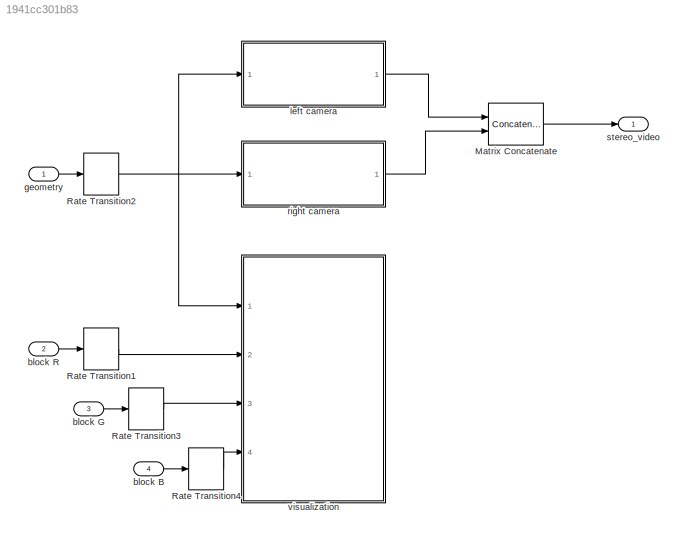
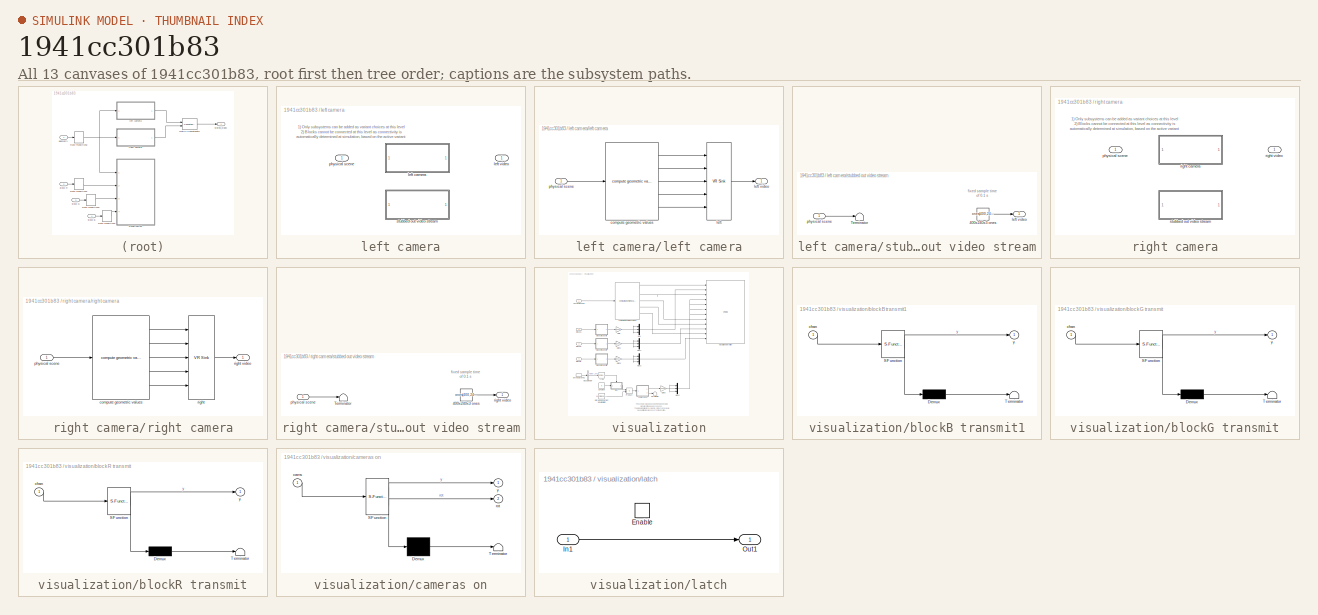
[diagram: thumbnail index - all 13 canvases of the model, root first then tree order]
MODEL slx_1941cc301b83
KIND model
WORKSPACE source: MAT-file member
WORKSPACE ini_nozzle_vpos = 0.3
BLOCK [Concatenate] Matrix Concatenate
  ConcatenateDimension = 3
  Mode = Multidimensional array
  Ports = [2, 1]
BLOCK [RateTransition] Rate Transition1
  Deterministic = off
  OutPortSampleTime = 0.1
BLOCK [RateTransition] Rate Transition2
  Deterministic = off
  OutPortSampleTime = 0.1
BLOCK [RateTransition] Rate Transition3
  Deterministic = off
  OutPortSampleTime = 0.1
BLOCK [RateTransition] Rate Transition4
  Deterministic = off
  OutPortSampleTime = 0.1
BLOCK [Inport] block B
  BusOutputAsStruct = on
  IconDisplay = Port number
  OutDataTypeStr = Bus: slBusBlockOps
  Port = 4
  SampleTime = 0.05
BLOCK [Inport] block G
  BusOutputAsStruct = on
  IconDisplay = Port number
  OutDataTypeStr = Bus: slBusBlockOps
  Port = 3
  SampleTime = 0.05
BLOCK [Inport] block R
  BusOutputAsStruct = on
  IconDisplay = Port number
  OutDataTypeStr = Bus: slBusBlockOps
  Port = 2
  SampleTime = 0.05
BLOCK [Inport] geometry
  IconDisplay = Port number
  OutDataTypeStr = Bus: slBusGeometry
  SampleTime = 0.005
BLOCK [SubSystem] left camera
  FunctionWithSeparateData = off
  MaskHideContents = off
  MinAlgLoopOccurrences = off
  Opaque = off
  Ports = [1, 1]
  PropExecContextOutsideSubsystem = off
  RTWSystemCode = Auto
  RequestExecContextInheritance = off
  Variant = on
BLOCK [SubSystem] left camera/left camera
  FunctionWithSeparateData = off
  MaskHideContents = off
  MinAlgLoopOccurrences = off
  Opaque = off
  Ports = [1, 1]
  PropExecContextOutsideSubsystem = off
  RTWSystemCode = Auto
  RequestExecContextInheritance = off
  VariantObject = useStereopsisVariant
BLOCK [Reference] left camera/left camera/compute geometric values  REF=cps_lib_v2/compute geometric  (lib defined in slx_b159750f0f55)
values
  Ports = [1, 5]
  SourceBlock = cps_lib_v2/compute geometric\nvalues
  SourceType = SubSystem
BLOCK [Reference] left camera/left camera/left  REF=vrlib/VR Sink
  AllowVariableSize = off
  AutoView = off
  FieldsWritten = red_block2x3dim.translation.3.1.1.double#slider.translation.3.1.1.double#LOWER.translation.3.1.1.double#purple_block2x3dim.translation.3.1.1.double#blue_block2x3dim.translation.3.1.1.double
  FigureProperties = {'Position', 'Name', 'Viewpoint', 'CameraBound', 'CameraDirection', 'CameraPosition', 'CameraUpVector', 'ZoomFactor', 'Antialiasing', 'Headlight', 'Lighting', 'NavPanel', 'StatusBar', 'ToolBar', 'Textures', 'Transparency', 'Triad', 'Wireframe', 'NavZones', 'NavMode', 'NavSpeed', 'CaptureFileFormat', 'CaptureFileName', 'Record2DCompressMethod', 'Record2DCompressQuality', 'Record2D', 'Record2DFileNa...<+591ch>
  InstantiateOnLoad = on
  Ports = [5, 1]
  RemoteChange = off
  RemoteView = off
  SampleTime = 0.1
  SourceBlock = vrlib/VR Sink
  SourceType = Virtual Reality Sink
  VideoDimensions = [400 240]
  ViewEnable = on
  WorldFileName = cps_world_v2.wrl
BLOCK [Outport] left camera/left camera/left video
  IconDisplay = Port number
BLOCK [Inport] left camera/left camera/physical scene
  IconDisplay = Port number
BLOCK [Outport] left camera/left video
  IconDisplay = Port number
BLOCK [Inport] left camera/physical scene
  IconDisplay = Port number
BLOCK [SubSystem] left camera/stubbed out video stream
  FunctionWithSeparateData = off
  MaskHideContents = off
  MinAlgLoopOccurrences = off
  Opaque = off
  Ports = [1, 1]
  PropExecContextOutsideSubsystem = off
  RTWSystemCode = Auto
  RequestExecContextInheritance = off
  VariantObject = noStereopsisVariant
BLOCK [Constant] left camera/stubbed out video stream/400x240x3 ones
  OutDataTypeStr = uint8
  SampleTime = 0.1
  Value = ones(400,240,3)
  VectorParams1D = off
BLOCK [Terminator] left camera/stubbed out video stream/Terminator
BLOCK [Outport] left camera/stubbed out video stream/left video
  IconDisplay = Port number
BLOCK [Inport] left camera/stubbed out video stream/physical scene
  IconDisplay = Port number
BLOCK [SubSystem] right camera
  FunctionWithSeparateData = off
  MaskHideContents = off
  MinAlgLoopOccurrences = off
  Opaque = off
  Ports = [1, 1]
  PropExecContextOutsideSubsystem = off
  RTWSystemCode = Auto
  RequestExecContextInheritance = off
  Variant = on
BLOCK [Inport] right camera/physical scene
  IconDisplay = Port number
BLOCK [SubSystem] right camera/right camera
  FunctionWithSeparateData = off
  MaskHideContents = off
  MinAlgLoopOccurrences = off
  Opaque = off
  Ports = [1, 1]
  PropExecContextOutsideSubsystem = off
  RTWSystemCode = Auto
  RequestExecContextInheritance = off
  VariantObject = useStereopsisVariant
BLOCK [Reference] right camera/right camera/compute geometric values  REF=cps_lib_v2/compute geometric  (lib defined in slx_b159750f0f55)
values
  Ports = [1, 5]
  SourceBlock = cps_lib_v2/compute geometric\nvalues
  SourceType = SubSystem
BLOCK [Inport] right camera/right camera/physical scene
  IconDisplay = Port number
BLOCK [Reference] right camera/right camera/right  REF=vrlib/VR Sink
  AllowVariableSize = off
  AutoView = off
  FieldsWritten = red_block2x3dim.translation.3.1.1.double#slider.translation.3.1.1.double#LOWER.translation.3.1.1.double#purple_block2x3dim.translation.3.1.1.double#blue_block2x3dim.translation.3.1.1.double
  FigureProperties = {'Position', 'Name', 'Viewpoint', 'CameraBound', 'CameraDirection', 'CameraPosition', 'CameraUpVector', 'ZoomFactor', 'Antialiasing', 'Headlight', 'Lighting', 'NavPanel', 'StatusBar', 'ToolBar', 'Textures', 'Transparency', 'Triad', 'Wireframe', 'NavZones', 'NavMode', 'NavSpeed', 'CaptureFileFormat', 'CaptureFileName', 'Record2DCompressMethod', 'Record2DCompressQuality', 'Record2D', 'Record2DFileNa...<+592ch>
  InstantiateOnLoad = on
  Ports = [5, 1]
  RemoteChange = off
  RemoteView = off
  SampleTime = 0.1
  SourceBlock = vrlib/VR Sink
  SourceType = Virtual Reality Sink
  VideoDimensions = [400 240]
  ViewEnable = on
  WorldFileName = cps_world_v2.wrl
BLOCK [Outport] right camera/right camera/right video
  IconDisplay = Port number
BLOCK [Outport] right camera/right video
  IconDisplay = Port number
BLOCK [SubSystem] right camera/stubbed out video stream
  FunctionWithSeparateData = off
  MaskHideContents = off
  MinAlgLoopOccurrences = off
  Opaque = off
  Ports = [1, 1]
  PropExecContextOutsideSubsystem = off
  RTWSystemCode = Auto
  RequestExecContextInheritance = off
  VariantObject = noStereopsisVariant
BLOCK [Constant] right camera/stubbed out video stream/400x240x3 ones
  OutDataTypeStr = uint8
  SampleTime = 0.1
  Value = ones(400,240,3)
  VectorParams1D = off
BLOCK [Terminator] right camera/stubbed out video stream/Terminator
BLOCK [Inport] right camera/stubbed out video stream/physical scene
  IconDisplay = Port number
BLOCK [Outport] right camera/stubbed out video stream/right video
  IconDisplay = Port number
BLOCK [Outport] stereo_video
  IconDisplay = Port number
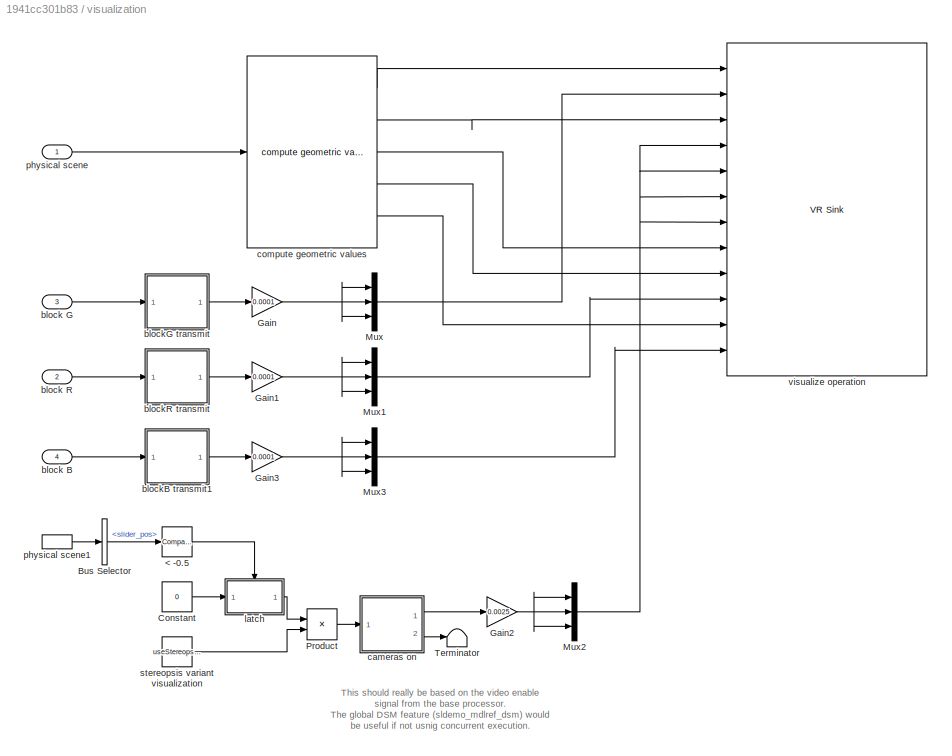
BLOCK [SubSystem] visualization
  FunctionWithSeparateData = off
  MaskHideContents = off
  MinAlgLoopOccurrences = off
  Opaque = off
  Ports = [4]
  PropExecContextOutsideSubsystem = off
  RTWSystemCode = Auto
  RequestExecContextInheritance = off
BLOCK [Reference] visualization/< -0.5  REF=simulink/Logic and Bit
Operations/Compare
To Constant
  OutDataTypeStr = boolean
  Ports = [1, 1]
  SourceBlock = simulink/Logic and Bit\nOperations/Compare\nTo Constant
  SourceType = Compare To Constant
  ZeroCross = on
  const = -0.5
  relop = <
BLOCK [BusSelector] visualization/Bus Selector
  OutputSignals = slider_pos
  Ports = [1, 1]
BLOCK [Constant] visualization/Constant
  OutDataTypeStr = Inherit: Inherit via back propagation
  Value = 0
BLOCK [Gain] visualization/Gain
  Gain = 0.0001
  OutDataTypeStr = Inherit: Inherit via internal rule
  ParamDataTypeStr = Inherit: Inherit via internal rule
  SaturateOnIntegerOverflow = off
BLOCK [Gain] visualization/Gain1
  Gain = 0.0001
  OutDataTypeStr = Inherit: Inherit via internal rule
  ParamDataTypeStr = Inherit: Inherit via internal rule
  SaturateOnIntegerOverflow = off
BLOCK [Gain] visualization/Gain2
  Gain = 0.0025
  OutDataTypeStr = Inherit: Inherit via internal rule
  ParamDataTypeStr = Inherit: Inherit via internal rule
  SaturateOnIntegerOverflow = off
BLOCK [Gain] visualization/Gain3
  Gain = 0.0001
  OutDataTypeStr = Inherit: Inherit via internal rule
  ParamDataTypeStr = Inherit: Inherit via internal rule
  SaturateOnIntegerOverflow = off
BLOCK [Mux] visualization/Mux
  DisplayOption = bar
  Inputs = 3
  Ports = [3, 1]
BLOCK [Mux] visualization/Mux1
  DisplayOption = bar
  Inputs = 3
  Ports = [3, 1]
BLOCK [Mux] visualization/Mux2
  DisplayOption = bar
  Inputs = 3
  Ports = [3, 1]
BLOCK [Mux] visualization/Mux3
  DisplayOption = bar
  Inputs = 3
  Ports = [3, 1]
BLOCK [Product] visualization/Product
  InputSameDT = off
  OutDataTypeStr = uint8
  Ports = [2, 1]
  SaturateOnIntegerOverflow = off
BLOCK [Terminator] visualization/Terminator
BLOCK [Inport] visualization/block B
  BusOutputAsStruct = on
  IconDisplay = Port number
  OutDataTypeStr = Bus: slBusBlockOps
  Port = 4
BLOCK [Inport] visualization/block G
  BusOutputAsStruct = on
  IconDisplay = Port number
  OutDataTypeStr = Bus: slBusBlockOps
  Port = 3
BLOCK [Inport] visualization/block R
  BusOutputAsStruct = on
  IconDisplay = Port number
  OutDataTypeStr = Bus: slBusBlockOps
  Port = 2
BLOCK [SubSystem] visualization/blockB transmit1
  ErrorFcn = Stateflow.Translate.translate
  FunctionWithSeparateData = off
  MaskHideContents = off
  MinAlgLoopOccurrences = off
  Opaque = off
  PermitHierarchicalResolution = ExplicitOnly
  Ports = [1, 1]
  PropExecContextOutsideSubsystem = off
  RTWSystemCode = Auto
  RequestExecContextInheritance = off
  SFBlockType = Chart
  TreatAsAtomicUnit = on
BLOCK [Demux] visualization/blockB transmit1/ Demux 
  Outputs = 1
  Ports = [1, 1]
BLOCK [S-Function] visualization/blockB transmit1/ SFunction 
  EnableBusSupport = on
  FunctionName = sf_sfun
  PortCounts = [1 2]
  Ports = [1, 2]
  Tag = Stateflow S-Function cps_cameras_v2 3
BLOCK [Terminator] visualization/blockB transmit1/ Terminator 
BLOCK [Inport] visualization/blockB transmit1/chan
  IconDisplay = Port number
BLOCK [Outport] visualization/blockB transmit1/y
  IconDisplay = Port number
BLOCK [SubSystem] visualization/blockG transmit
  ErrorFcn = Stateflow.Translate.translate
  FunctionWithSeparateData = off
  MaskHideContents = off
  MinAlgLoopOccurrences = off
  Opaque = off
  PermitHierarchicalResolution = ExplicitOnly
  Ports = [1, 1]
  PropExecContextOutsideSubsystem = off
  RTWSystemCode = Auto
  RequestExecContextInheritance = off
  SFBlockType = Chart
  TreatAsAtomicUnit = on
BLOCK [Demux] visualization/blockG transmit/ Demux 
  Outputs = 1
  Ports = [1, 1]
BLOCK [S-Function] visualization/blockG transmit/ SFunction 
  EnableBusSupport = on
  FunctionName = sf_sfun
  PortCounts = [1 2]
  Ports = [1, 2]
  Tag = Stateflow S-Function cps_cameras_v2 4
BLOCK [Terminator] visualization/blockG transmit/ Terminator 
BLOCK [Inport] visualization/blockG transmit/chan
  IconDisplay = Port number
BLOCK [Outport] visualization/blockG transmit/y
  IconDisplay = Port number
BLOCK [SubSystem] visualization/blockR transmit
  ErrorFcn = Stateflow.Translate.translate
  FunctionWithSeparateData = off
  MaskHideContents = off
  MinAlgLoopOccurrences = off
  Opaque = off
  PermitHierarchicalResolution = ExplicitOnly
  Ports = [1, 1]
  PropExecContextOutsideSubsystem = off
  RTWSystemCode = Auto
  RequestExecContextInheritance = off
  SFBlockType = Chart
  TreatAsAtomicUnit = on
BLOCK [Demux] visualization/blockR transmit/ Demux 
  Outputs = 1
  Ports = [1, 1]
BLOCK [S-Function] visualization/blockR transmit/ SFunction 
  EnableBusSupport = on
  FunctionName = sf_sfun
  PortCounts = [1 2]
  Ports = [1, 2]
  Tag = Stateflow S-Function cps_cameras_v2 1
BLOCK [Terminator] visualization/blockR transmit/ Terminator 
BLOCK [Inport] visualization/blockR transmit/chan
  IconDisplay = Port number
BLOCK [Outport] visualization/blockR transmit/y
  IconDisplay = Port number
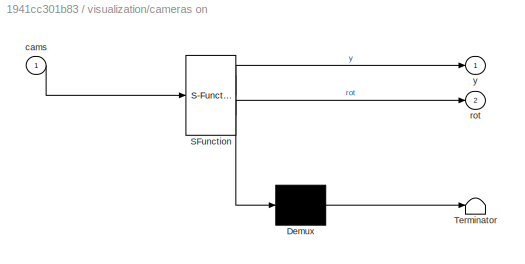
BLOCK [SubSystem] visualization/cameras on
  ErrorFcn = Stateflow.Translate.translate
  FunctionWithSeparateData = off
  MaskHideContents = off
  MinAlgLoopOccurrences = off
  Opaque = off
  PermitHierarchicalResolution = ExplicitOnly
  Ports = [1, 2]
  PropExecContextOutsideSubsystem = off
  RTWSystemCode = Auto
  RequestExecContextInheritance = off
  SFBlockType = Chart
  TreatAsAtomicUnit = on
BLOCK [Demux] visualization/cameras on/ Demux 
  Outputs = 1
  Ports = [1, 1]
BLOCK [S-Function] visualization/cameras on/ SFunction 
  EnableBusSupport = on
  FunctionName = sf_sfun
  PortCounts = [1 3]
  Ports = [1, 3]
  Tag = Stateflow S-Function cps_cameras_v2 2
BLOCK [Terminator] visualization/cameras on/ Terminator 
BLOCK [Inport] visualization/cameras on/cams
  IconDisplay = Port number
BLOCK [Outport] visualization/cameras on/rot
  IconDisplay = Port number
  Port = 2
BLOCK [Outport] visualization/cameras on/y
  IconDisplay = Port number
BLOCK [Reference] visualization/compute geometric values  REF=cps_lib_v2/compute geometric  (lib defined in slx_b159750f0f55)
values
  Ports = [1, 5]
  SourceBlock = cps_lib_v2/compute geometric\nvalues
  SourceType = SubSystem
BLOCK [SubSystem] visualization/latch
  FunctionWithSeparateData = off
  MaskHideContents = off
  MinAlgLoopOccurrences = off
  Opaque = off
  Ports = [1, 1, 1]
  PropExecContextOutsideSubsystem = off
  RTWSystemCode = Auto
  RequestExecContextInheritance = off
  TreatAsAtomicUnit = on
BLOCK [EnablePort] visualization/latch/Enable
  Ports = []
BLOCK [Inport] visualization/latch/In1
  IconDisplay = Port number
BLOCK [Outport] visualization/latch/Out1
  IconDisplay = Port number
  InitialOutput = 1
BLOCK [Inport] visualization/physical scene
  IconDisplay = Port number
BLOCK [InportShadow] visualization/physical scene1
  IconDisplay = Port number
  LatchByDelayingOutsideSignal = off
  LatchInputForFeedbackSignals = off
BLOCK [Constant] visualization/stereopsis variant visualization
  OutDataTypeStr = Inherit: Inherit via back propagation
  Value = useStereopsis
BLOCK [Reference] visualization/visualize operation  REF=vrlib/VR Sink
  AllowVariableSize = off
  AutoView = on
  FieldsWritten = red_block2x3dim.translation.3.1.1.double#blockG_waves.scale.3.1.1.double#slider.translation.3.1.1.double#left_cone_half_one.scale.3.1.1.double#left_cone_half_two.scale.3.1.1.double#right_cone_half_one.scale.3.1.1.double#right_cone_half_two.scale.3.1.1.double#LOWER.translation.3.1.1.double#purple_block2x3dim.translation.3.1.1.double#blockR_waves.scale.3.1.1.double#blue_block2x3dim.translation.3.1.1...<+39ch>
  FigureProperties = {'Position', 'Name', 'Viewpoint', 'CameraBound', 'CameraDirection', 'CameraPosition', 'CameraUpVector', 'ZoomFactor', 'Antialiasing', 'Headlight', 'Lighting', 'NavPanel', 'StatusBar', 'ToolBar', 'Textures', 'Transparency', 'Triad', 'Wireframe', 'NavZones', 'NavMode', 'NavSpeed', 'CaptureFileFormat', 'CaptureFileName', 'Record2DCompressMethod', 'Record2DCompressQuality', 'Record2D', 'Record2DFileNa...<+596ch>
  InstantiateOnLoad = on
  Ports = [12]
  RemoteChange = off
  RemoteView = off
  SampleTime = 0.1
  SourceBlock = vrlib/VR Sink
  SourceType = Virtual Reality Sink
  VideoDimensions = []
  ViewEnable = on
  WorldFileName = cps_world_v2x.wrl
ANNOTATION left camera: 1) Only subsystems can be added as variant choices at this level 2) Blocks cannot be connected at this level as connectivity is automatically determined at simulation, based on the active variant
ANNOTATION left camera/stubbed out video stream: fixed sample time of 0.1 s
ANNOTATION right camera: 1) Only subsystems can be added as variant choices at this level 2) Blocks cannot be connected at this level as connectivity is automatically determined at simulation, based on the active variant
ANNOTATION right camera/stubbed out video stream: fixed sample time of 0.1 s
ANNOTATION visualization: This should really be based on the video enable signal from the base processor. The global DSM feature (sldemo_mdlref_dsm) would be useful if not usnig concurrent execution.
LINE Matrix Concatenate:1 -> stereo_video:1
LINE Rate Transition1:1 -> visualization:2
NET Rate Transition2:1 -> left camera:1, right camera:1, visualization:1
LINE Rate Transition3:1 -> visualization:3
LINE Rate Transition4:1 -> visualization:4
LINE block B:1 -> Rate Transition4:1
LINE block G:1 -> Rate Transition3:1
LINE block R:1 -> Rate Transition1:1
LINE geometry:1 -> Rate Transition2:1
LINE left camera/left camera/compute geometric values:1 -> left camera/left camera/left:1
LINE left camera/left camera/compute geometric values:2 -> left camera/left camera/left:2
LINE left camera/left camera/compute geometric values:3 -> left camera/left camera/left:3
LINE left camera/left camera/compute geometric values:4 -> left camera/left camera/left:4
LINE left camera/left camera/compute geometric values:5 -> left camera/left camera/left:5
LINE left camera/left camera/left:1 -> left camera/left camera/left video:1
LINE left camera/left camera/physical scene:1 -> left camera/left camera/compute geometric values:1
LINE left camera/stubbed out video stream/400x240x3 ones:1 -> left camera/stubbed out video stream/left video:1
LINE left camera/stubbed out video stream/physical scene:1 -> left camera/stubbed out video stream/Terminator:1
LINE left camera:1 -> Matrix Concatenate:1
LINE right camera/right camera/compute geometric values:1 -> right camera/right camera/right:1
LINE right camera/right camera/compute geometric values:2 -> right camera/right camera/right:2
LINE right camera/right camera/compute geometric values:3 -> right camera/right camera/right:3
LINE right camera/right camera/compute geometric values:4 -> right camera/right camera/right:4
LINE right camera/right camera/compute geometric values:5 -> right camera/right camera/right:5
LINE right camera/right camera/physical scene:1 -> right camera/right camera/compute geometric values:1
LINE right camera/right camera/right:1 -> right camera/right camera/right video:1
LINE right camera/stubbed out video stream/400x240x3 ones:1 -> right camera/stubbed out video stream/right video:1
LINE right camera/stubbed out video stream/physical scene:1 -> right camera/stubbed out video stream/Terminator:1
LINE right camera:1 -> Matrix Concatenate:2
LINE visualization/< -0.5:1 -> visualization/latch:enable
LINE visualization/Bus Selector:1 -> visualization/< -0.5:1
LINE visualization/Constant:1 -> visualization/latch:1
NET visualization/Gain1:1 -> visualization/Mux1:1, visualization/Mux1:2, visualization/Mux1:3
NET visualization/Gain2:1 -> visualization/Mux2:1, visualization/Mux2:2, visualization/Mux2:3
NET visualization/Gain3:1 -> visualization/Mux3:1, visualization/Mux3:2, visualization/Mux3:3
NET visualization/Gain:1 -> visualization/Mux:1, visualization/Mux:2, visualization/Mux:3
LINE visualization/Mux1:1 -> visualization/visualize operation:10
NET visualization/Mux2:1 -> visualization/visualize operation:4, visualization/visualize operation:5, visualization/visualize operation:6, visualization/visualize operation:7
LINE visualization/Mux3:1 -> visualization/visualize operation:12
LINE visualization/Mux:1 -> visualization/visualize operation:2
LINE visualization/Product:1 -> visualization/cameras on:1
LINE visualization/block B:1 -> visualization/blockB transmit1:1
LINE visualization/block G:1 -> visualization/blockG transmit:1
LINE visualization/block R:1 -> visualization/blockR transmit:1
LINE visualization/blockB transmit1:1 -> visualization/Gain3:1
LINE visualization/blockG transmit:1 -> visualization/Gain:1
LINE visualization/blockR transmit:1 -> visualization/Gain1:1
LINE visualization/cameras on:1 -> visualization/Gain2:1
LINE visualization/cameras on:2 -> visualization/Terminator:1
LINE visualization/compute geometric values:1 -> visualization/visualize operation:1
LINE visualization/compute geometric values:2 -> visualization/visualize operation:3
LINE visualization/compute geometric values:3 -> visualization/visualize operation:8
LINE visualization/compute geometric values:4 -> visualization/visualize operation:9
LINE visualization/compute geometric values:5 -> visualization/visualize operation:11
LINE visualization/latch/In1:1 -> visualization/latch/Out1:1
LINE visualization/latch:1 -> visualization/Product:1
LINE visualization/physical scene1:1 -> visualization/Bus Selector:1
LINE visualization/physical scene:1 -> visualization/compute geometric values:1
LINE visualization/stereopsis variant visualization:1 -> visualization/Product:2
note: NET lines group one-source signal fan-out (src -> all destinations, sorted); 1:1 wires keep LINE
